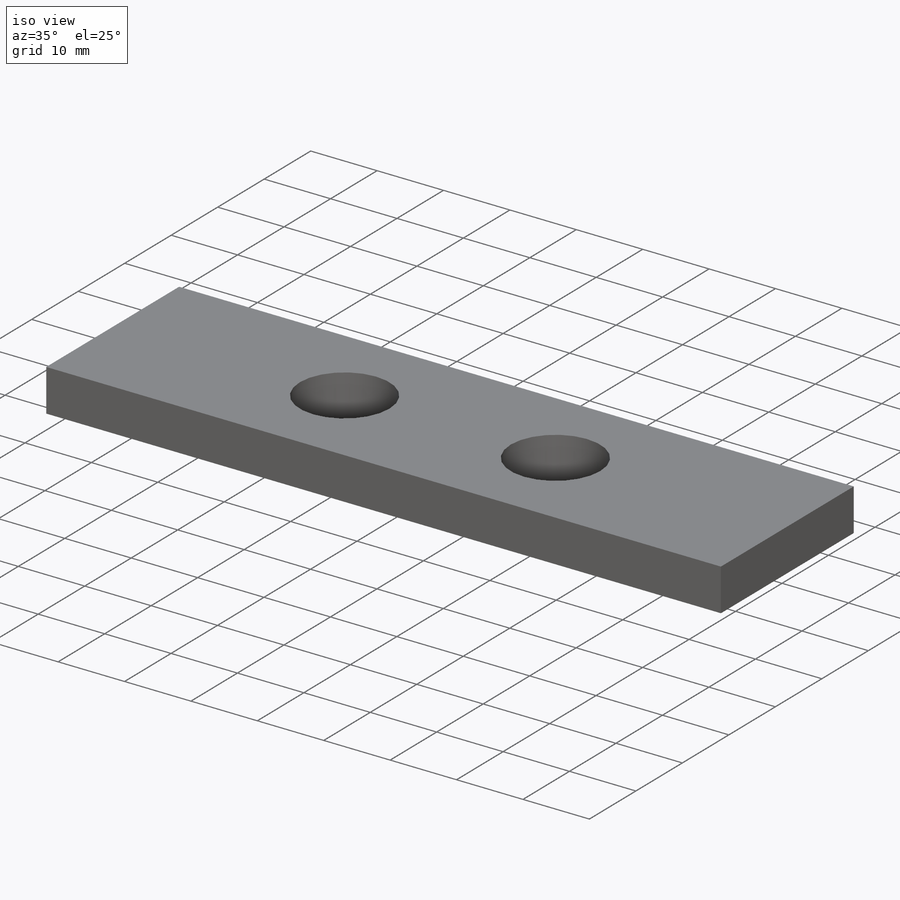
[diagram: iso view]
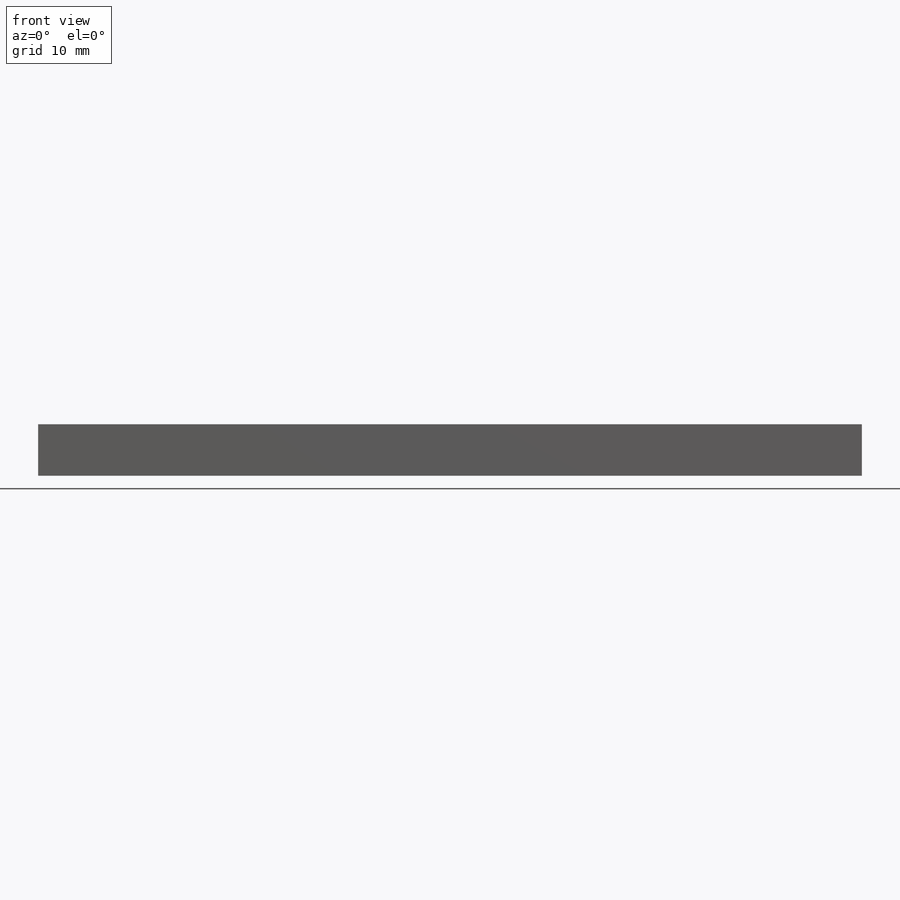
[diagram: front view]
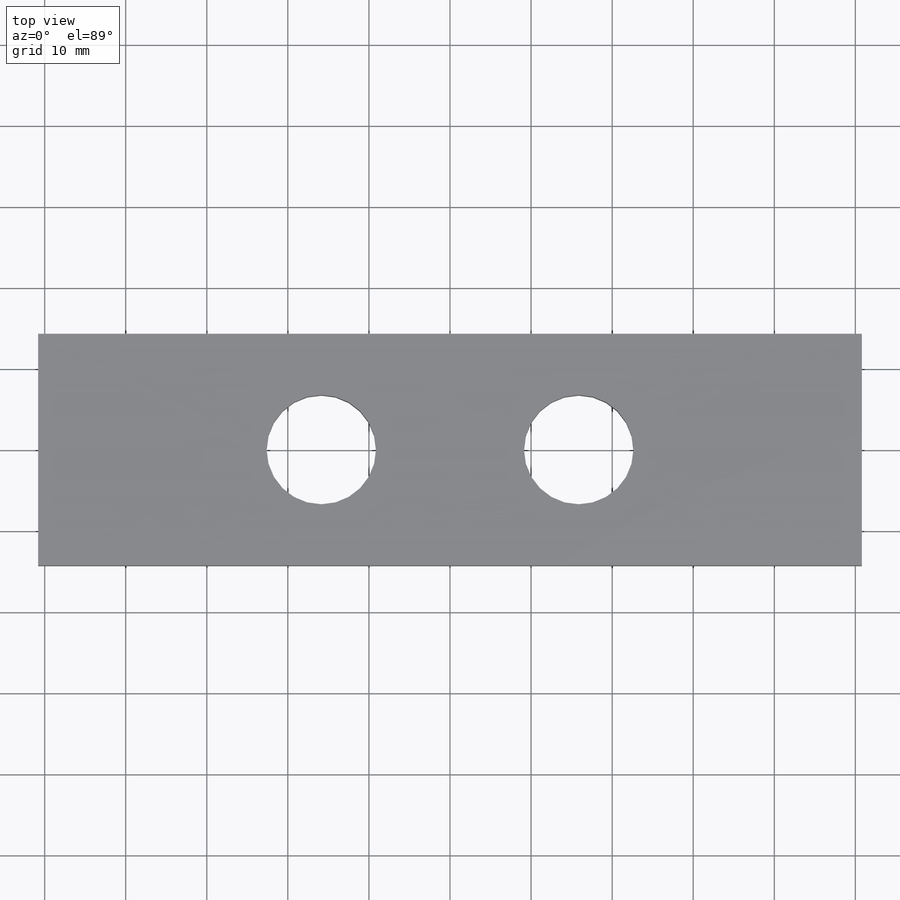
[diagram: top view]
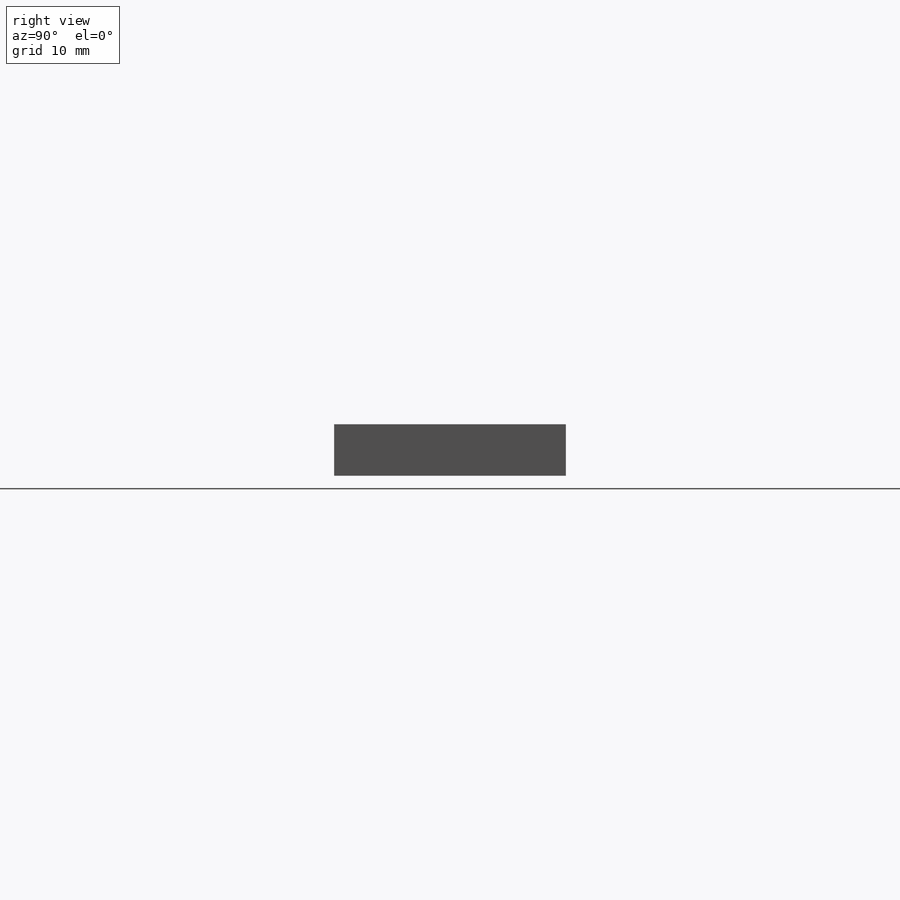
[diagram: right view]
SOLIDWORKS PART (.sldprt)
format: sldprt  version: not decoded by parser v0  size: 312,320 bytes
history: native  units: mm
features: sketch x3, material x1, extrude x1, hole x1 (+14 scaffold rows collapsed)
feature tree (20):
  scaffold x14  (default folders/planes/origin — collapsed)
  material  "AISI 1018 Steel, Cold Rolled"
  sketch  "Sketch1"  dims[c1.D1=14.2875mm c1.D2=3.175mm c2.D1=28.575mm c2.D2=6.35mm c3.D2=90.0deg c4.D2=6.35mm]
  extrude  "Extrude1"  Depth=50.8mm
  hole  "1/2 Clearance Hole1"  Diameter=13.49248mm Depth=6.35mm
  sketch  "Sketch3"  dims[D1=15.875mm D2=15.875mm]
  sketch  "Sketch2"  dims[hole-wizard template sketch: 59 standard entries collapsed; hole parameters kept: c18.Thru Hole Dia.=~13.49248mm c18.Thru Hole Depth=6.35mm]
decode coverage: 5 of 5 modeling features carry decoded parameters
note: ~ marks probable driven/reference dimensions
note: suppression state not decoded; provenance and decode notes live in map.json
